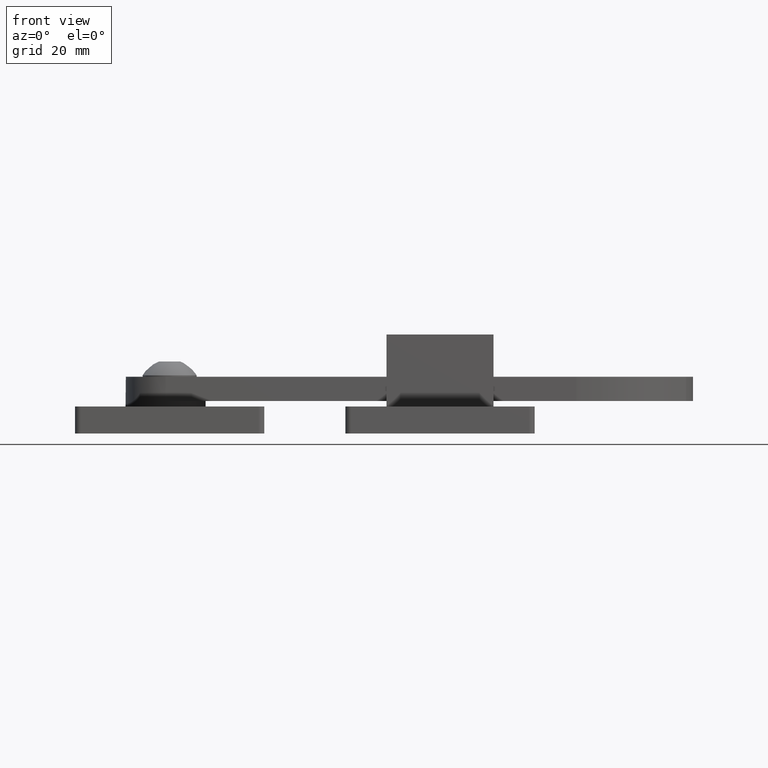
[diagram: clean part render]
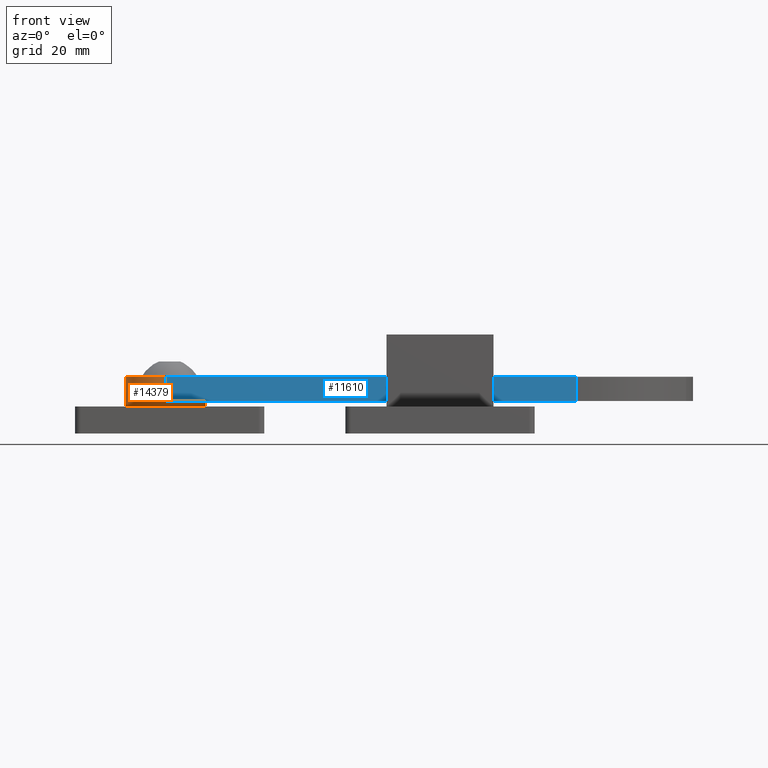
[diagram: same view with the hole feature highlighted: cylindrical wall and planar end face, labeled with their STEP entity ids]
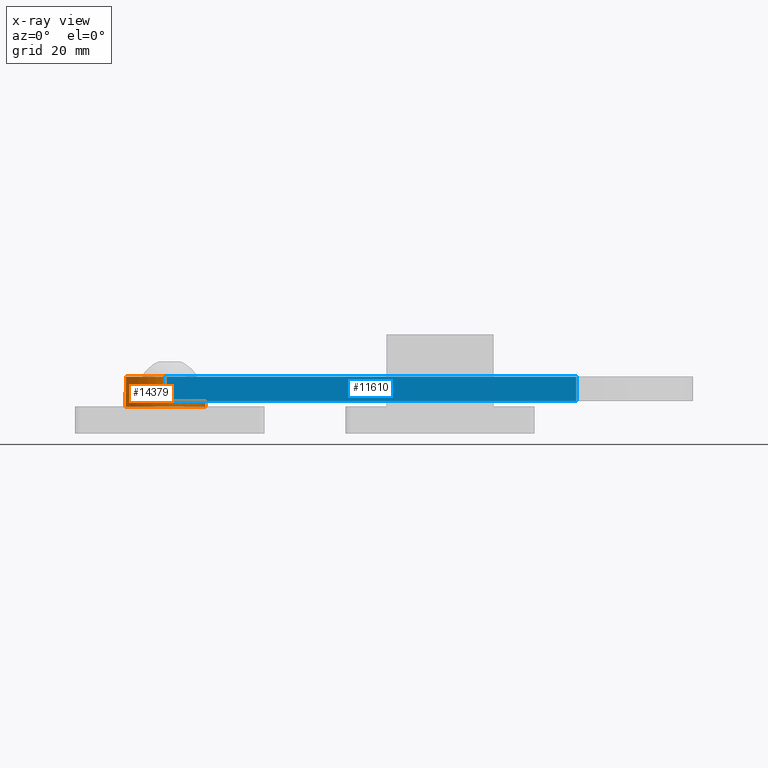
[diagram: x-ray of the same camera — body ghosted, the hole faces saturated]
A machine part, front view. The highlighted faces form one hole feature of diameter 14.8 mm: the cylindrical wall (entity #14379, orange) and its adjacent planar end face (entity #11610, blue) — they share a circular edge in the B-rep.
The next image is the same camera in x-ray (body ghosted, the hole faces saturated) — the bore reads through the body.
Wall:
#73 = EDGE_CURVE ( 'NONE', #5462, #6053, #7438, .T. ) ;
#257 = EDGE_CURVE ( 'NONE', #6053, #6931, #17146, .T. ) ;
#1049 = CARTESIAN_POINT ( 'NONE',  ( 45.09546788749680957, -7.400000000000008349, 2.250000000000000444 ) ) ;
#2509 = VECTOR ( 'NONE', #14858, 1000.000000000000000 ) ;
#2750 = CARTESIAN_POINT ( 'NONE',  ( 45.09546788749680957, -7.400000000000008349, 2.250000000000000444 ) ) ;
#3161 = CARTESIAN_POINT ( 'NONE',  ( 45.09546788749680957, -7.806255641895631925E-15, 2.250000000000000444 ) ) ;
#3538 = EDGE_CURVE ( 'NONE', #11519, #11519, #9042, .T. ) ;
#4469 = ORIENTED_EDGE ( 'NONE', *, *, #257, .T. ) ;
#4515 = FACE_OUTER_BOUND ( 'NONE', #14113, .T. ) ;
#5462 = VERTEX_POINT ( 'NONE', #2750 ) ;
#5931 = AXIS2_PLACEMENT_3D ( 'NONE', #16529, #18126, #9014 ) ;
#6053 = VERTEX_POINT ( 'NONE', #7751 ) ;
#6400 = AXIS2_PLACEMENT_3D ( 'NONE', #3161, #16822, #12328 ) ;
#6755 = AXIS2_PLACEMENT_3D ( 'NONE', #9577, #17272, #11333 ) ;
#6931 = VERTEX_POINT ( 'NONE', #10936 ) ;
#7438 = LINE ( 'NONE', #1049, #2509 ) ;
#7751 = CARTESIAN_POINT ( 'NONE',  ( 45.09546788749680957, -7.400000000000008349, -2.250000000000000000 ) ) ;
#8122 = CARTESIAN_POINT ( 'NONE',  ( 37.69546788749681809, -7.806255641895631925E-15, -3.250000000000000000 ) ) ;
#9014 = DIRECTION ( 'NONE',  ( -1.000000000000000000, 0.000000000000000000, 0.000000000000000000 ) ) ;
#9042 = CIRCLE ( 'NONE', #5931, 7.399999999999996803 ) ;
#9577 = CARTESIAN_POINT ( 'NONE',  ( 45.09546788749680957, -7.806255641895631925E-15, 2.250000000000000444 ) ) ;
#9604 = DIRECTION ( 'NONE',  ( -2.821186441973490019E-37, 1.128474576789396008E-36, -1.000000000000000000 ) ) ;
#10833 = CARTESIAN_POINT ( 'NONE',  ( 45.09546788749680246, 7.399999999999985256, 2.250000000000000444 ) ) ;
#10936 = CARTESIAN_POINT ( 'NONE',  ( 45.09546788749680957, 7.399999999999987033, -2.250000000000000000 ) ) ;
#11333 = DIRECTION ( 'NONE',  ( -1.000000000000000000, 0.000000000000000000, 0.000000000000000000 ) ) ;
#11444 = DIRECTION ( 'NONE',  ( -1.000000000000000000, 0.000000000000000000, 0.000000000000000000 ) ) ;
#11519 = VERTEX_POINT ( 'NONE', #8122 ) ;
#11973 = VERTEX_POINT ( 'NONE', #10833 ) ;
#12046 = EDGE_LOOP ( 'NONE', ( #17416, #4469, #13190, #13078 ) ) ;
#12328 = DIRECTION ( 'NONE',  ( 1.000000000000000000, 0.000000000000000000, 0.000000000000000000 ) ) ;
#12945 = VECTOR ( 'NONE', #9604, 1000.000000000000000 ) ;
#13018 = FACE_OUTER_BOUND ( 'NONE', #12046, .T. ) ;
#13078 = ORIENTED_EDGE ( 'NONE', *, *, #15025, .F. ) ;
#13190 = ORIENTED_EDGE ( 'NONE', *, *, #17289, .F. ) ;
#13687 = LINE ( 'NONE', #19024, #12945 ) ;
#13731 = CIRCLE ( 'NONE', #6400, 7.399999999999996803 ) ;
#13737 = ORIENTED_EDGE ( 'NONE', *, *, #3538, .F. ) ;
#13920 = AXIS2_PLACEMENT_3D ( 'NONE', #15857, #18960, #11444 ) ;
#14113 = EDGE_LOOP ( 'NONE', ( #13737 ) ) ;
#14379 = ADVANCED_FACE ( 'NONE', ( #13018, #4515 ), #16087, .T. ) ;
#14858 = DIRECTION ( 'NONE',  ( -2.821186441973490019E-37, 1.128474576789396008E-36, -1.000000000000000000 ) ) ;
#15025 = EDGE_CURVE ( 'NONE', #5462, #11973, #13731, .T. ) ;
#15857 = CARTESIAN_POINT ( 'NONE',  ( 45.09546788749680957, -7.806255641895631925E-15, -2.250000000000000000 ) ) ;
#16087 = CYLINDRICAL_SURFACE ( 'NONE', #6755, 7.399999999999996803 ) ;
#16529 = CARTESIAN_POINT ( 'NONE',  ( 45.09546788749680957, -7.806255641895631925E-15, -3.250000000000000000 ) ) ;
#16822 = DIRECTION ( 'NONE',  ( 2.821186441973490019E-37, -1.128474576789396008E-36, 1.000000000000000000 ) ) ;
#17146 = CIRCLE ( 'NONE', #13920, 7.399999999999996803 ) ;
#17272 = DIRECTION ( 'NONE',  ( -2.821186441973490019E-37, 1.128474576789396008E-36, -1.000000000000000000 ) ) ;
#17289 = EDGE_CURVE ( 'NONE', #11973, #6931, #13687, .T. ) ;
#17416 = ORIENTED_EDGE ( 'NONE', *, *, #73, .T. ) ;
#18126 = DIRECTION ( 'NONE',  ( -2.821186441973490019E-37, 1.128474576789396008E-36, -1.000000000000000000 ) ) ;
#18960 = DIRECTION ( 'NONE',  ( -2.821186441973490019E-37, 1.128474576789396008E-36, -1.000000000000000000 ) ) ;
#19024 = CARTESIAN_POINT ( 'NONE',  ( 45.09546788749680246, 7.399999999999985256, 2.250000000000000444 ) ) ;
End face:
#179 = VECTOR ( 'NONE', #16109, 1000.000000000000000 ) ;
#358 = LINE ( 'NONE', #17950, #13346 ) ;
#437 = LINE ( 'NONE', #14541, #179 ) ;
#2337 = AXIS2_PLACEMENT_3D ( 'NONE', #11697, #13396, #10196 ) ;
#2681 = FACE_OUTER_BOUND ( 'NONE', #14900, .T. ) ;
#6679 = CARTESIAN_POINT ( 'NONE',  ( -30.86453211250306694, 7.400000000000005684, 2.250000000000000444 ) ) ;
#6807 = DIRECTION ( 'NONE',  ( -2.821186441973490019E-37, 1.128474576789396008E-36, -1.000000000000000000 ) ) ;
#6870 = LINE ( 'NONE', #6679, #9277 ) ;
#6910 = VERTEX_POINT ( 'NONE', #11505 ) ;
#6931 = VERTEX_POINT ( 'NONE', #10936 ) ;
#7098 = CARTESIAN_POINT ( 'NONE',  ( -30.86453211250306694, 7.400000000000005684, 2.250000000000000444 ) ) ;
#9175 = VERTEX_POINT ( 'NONE', #7098 ) ;
#9277 = VECTOR ( 'NONE', #6807, 1000.000000000000000 ) ;
#9604 = DIRECTION ( 'NONE',  ( -2.821186441973490019E-37, 1.128474576789396008E-36, -1.000000000000000000 ) ) ;
#10108 = EDGE_CURVE ( 'NONE', #11973, #9175, #358, .T. ) ;
#10196 = DIRECTION ( 'NONE',  ( 1.000000000000000000, -2.055359568692898760E-16, 2.350988701644578357E-37 ) ) ;
#10833 = CARTESIAN_POINT ( 'NONE',  ( 45.09546788749680246, 7.399999999999985256, 2.250000000000000444 ) ) ;
#10936 = CARTESIAN_POINT ( 'NONE',  ( 45.09546788749680957, 7.399999999999987033, -2.250000000000000000 ) ) ;
#11505 = CARTESIAN_POINT ( 'NONE',  ( -30.86453211250306694, 7.400000000000005684, -2.250000000000000000 ) ) ;
#11610 = ADVANCED_FACE ( 'NONE', ( #2681 ), #14680, .F. ) ;
#11697 = CARTESIAN_POINT ( 'NONE',  ( 45.09546788749680246, 7.399999999999985256, 2.250000000000000444 ) ) ;
#11949 = DIRECTION ( 'NONE',  ( -1.000000000000000000, 2.055359568692898760E-16, -2.350988701644578357E-37 ) ) ;
#11973 = VERTEX_POINT ( 'NONE', #10833 ) ;
#12133 = ORIENTED_EDGE ( 'NONE', *, *, #10108, .F. ) ;
#12945 = VECTOR ( 'NONE', #9604, 1000.000000000000000 ) ;
#13140 = ORIENTED_EDGE ( 'NONE', *, *, #17289, .T. ) ;
#13346 = VECTOR ( 'NONE', #11949, 1000.000000000000000 ) ;
#13396 = DIRECTION ( 'NONE',  ( -2.055359568692898760E-16, -1.000000000000000000, 9.403954806578311757E-37 ) ) ;
#13471 = EDGE_CURVE ( 'NONE', #9175, #6910, #6870, .T. ) ;
#13687 = LINE ( 'NONE', #19024, #12945 ) ;
#13693 = ORIENTED_EDGE ( 'NONE', *, *, #13471, .F. ) ;
#14541 = CARTESIAN_POINT ( 'NONE',  ( 45.09546788749680246, 7.399999999999985256, -2.250000000000000000 ) ) ;
#14680 = PLANE ( 'NONE',  #2337 ) ;
#14900 = EDGE_LOOP ( 'NONE', ( #15714, #13693, #12133, #13140 ) ) ;
#15714 = ORIENTED_EDGE ( 'NONE', *, *, #18793, .T. ) ;
#16109 = DIRECTION ( 'NONE',  ( -1.000000000000000000, 2.055359568692898760E-16, -2.350988701644578357E-37 ) ) ;
#17289 = EDGE_CURVE ( 'NONE', #11973, #6931, #13687, .T. ) ;
#17950 = CARTESIAN_POINT ( 'NONE',  ( 45.09546788749680246, 7.399999999999985256, 2.250000000000000444 ) ) ;
#18793 = EDGE_CURVE ( 'NONE', #6931, #6910, #437, .T. ) ;
#19024 = CARTESIAN_POINT ( 'NONE',  ( 45.09546788749680246, 7.399999999999985256, 2.250000000000000444 ) ) ;